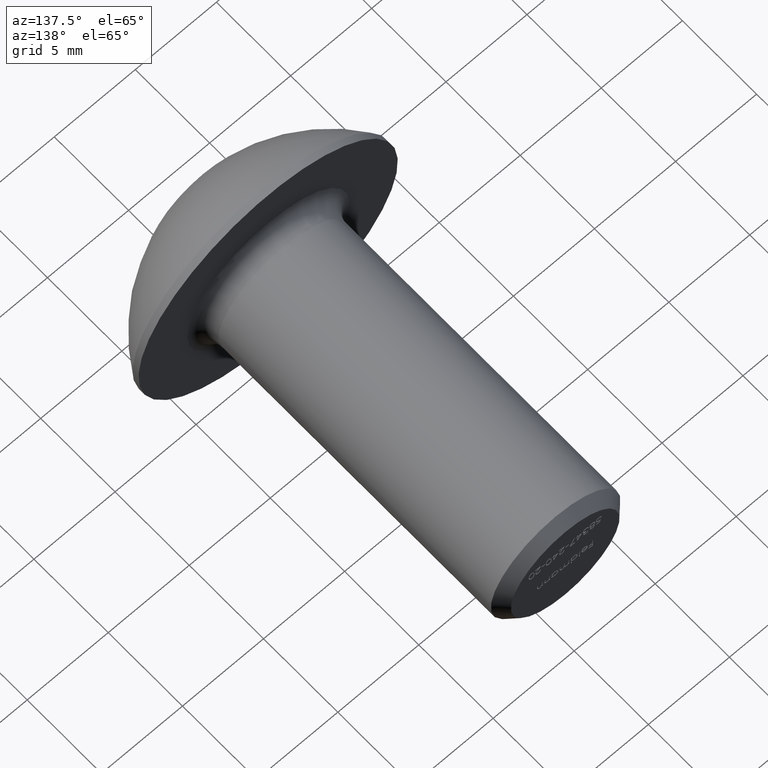
[diagram: clean part render]
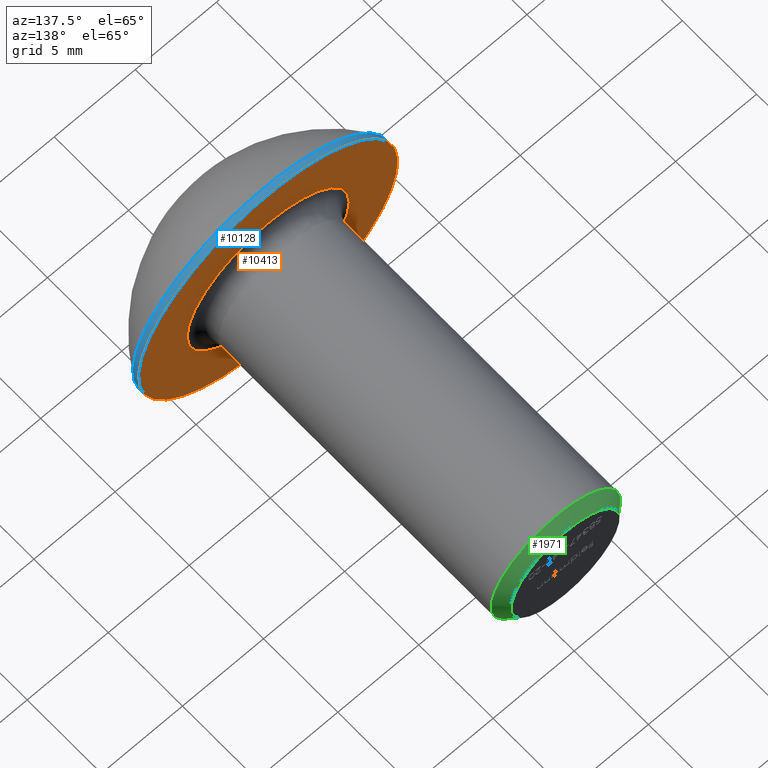
[diagram: same view with three faces highlighted in distinct colors, each labeled with its STEP entity id]
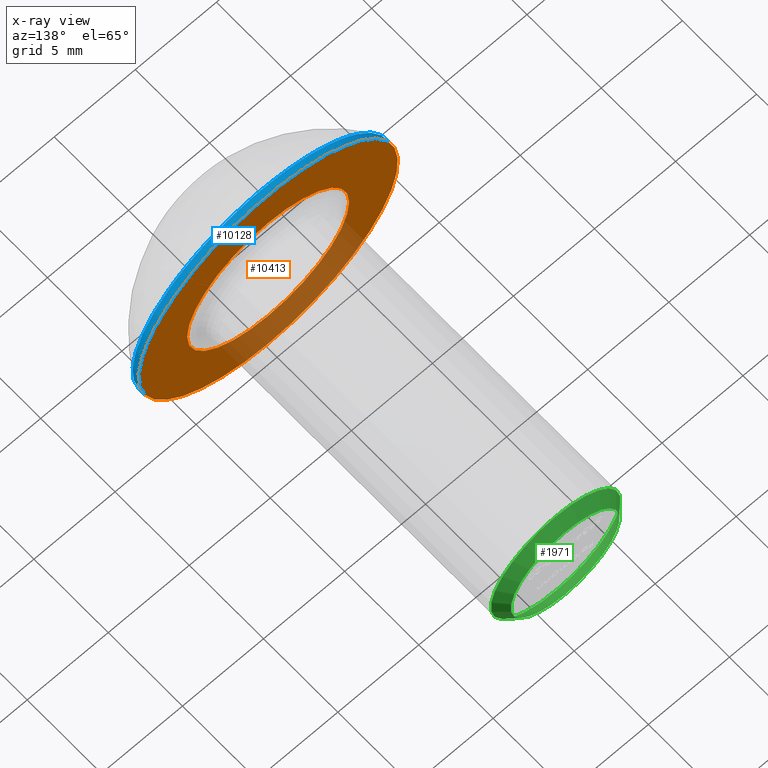
[diagram: x-ray of the same camera — body ghosted, the three highlighted faces saturated]
A machine part, auxiliary view with three faces highlighted in distinct colors.
The next image is the same camera in x-ray (body ghosted, the three faces saturated) — at least one of them is partly hidden behind the body in this view.
Their STEP definitions:

[orange] entity #10413 — the highlighted planar face has unit normal (0, -1, -0).
#270 = VERTEX_POINT ( 'NONE', #687 ) ;
#517 = AXIS2_PLACEMENT_3D ( 'NONE', #10687, #5062, #6247 ) ;
#687 = CARTESIAN_POINT ( 'NONE',  ( 0.000000000000000000, 4.400000000000000355, -8.000000000000000000 ) ) ;
#952 = ORIENTED_EDGE ( 'NONE', *, *, #3295, .T. ) ;
#1307 = EDGE_LOOP ( 'NONE', ( #5270 ) ) ;
#1503 = EDGE_CURVE ( 'NONE', #270, #270, #9214, .T. ) ;
#2052 = EDGE_LOOP ( 'NONE', ( #952 ) ) ;
#2203 = CARTESIAN_POINT ( 'NONE',  ( 0.000000000000000000, 4.400000000000000355, 0.000000000000000000 ) ) ;
#3031 = AXIS2_PLACEMENT_3D ( 'NONE', #2203, #10335, #9180 ) ;
#3295 = EDGE_CURVE ( 'NONE', #10657, #10657, #11158, .T. ) ;
#3474 = DIRECTION ( 'NONE',  ( -0.000000000000000000, -1.000000000000000000, -0.000000000000000000 ) ) ;
#5040 = FACE_OUTER_BOUND ( 'NONE', #1307, .T. ) ;
#5062 = DIRECTION ( 'NONE',  ( 0.000000000000000000, -1.000000000000000000, -0.000000000000000000 ) ) ;
#5270 = ORIENTED_EDGE ( 'NONE', *, *, #1503, .F. ) ;
#5323 = CARTESIAN_POINT ( 'NONE',  ( 0.000000000000000000, 4.400000000000000355, -4.999999999999996447 ) ) ;
#5950 = FACE_BOUND ( 'NONE', #2052, .T. ) ;
#6247 = DIRECTION ( 'NONE',  ( 0.000000000000000000, 0.000000000000000000, -1.000000000000000000 ) ) ;
#6956 = DIRECTION ( 'NONE',  ( 0.000000000000000000, 0.000000000000000000, -1.000000000000000000 ) ) ;
#9180 = DIRECTION ( 'NONE',  ( 0.000000000000000000, 0.000000000000000000, -1.000000000000000000 ) ) ;
#9214 = CIRCLE ( 'NONE', #3031, 8.000000000000000000 ) ;
#9591 = PLANE ( 'NONE',  #517 ) ;
#10335 = DIRECTION ( 'NONE',  ( -0.000000000000000000, -1.000000000000000000, -0.000000000000000000 ) ) ;
#10413 = ADVANCED_FACE ( 'NONE', ( #5950, #5040 ), #9591, .F. ) ;
#10657 = VERTEX_POINT ( 'NONE', #5323 ) ;
#10687 = CARTESIAN_POINT ( 'NONE',  ( 3.999999999999999112, 4.400000000000000355, 0.000000000000000000 ) ) ;
#11158 = CIRCLE ( 'NONE', #11311, 4.999999999999996447 ) ;
#11311 = AXIS2_PLACEMENT_3D ( 'NONE', #11603, #3474, #6956 ) ;
#11603 = CARTESIAN_POINT ( 'NONE',  ( 0.000000000000000000, 4.400000000000000355, 0.000000000000000000 ) ) ;

[blue] entity #10128 — the highlighted cylindrical surface (bore or boss wall) has radius 8 mm, axis along (-0, -1, -0).
#270 = VERTEX_POINT ( 'NONE', #687 ) ;
#687 = CARTESIAN_POINT ( 'NONE',  ( 0.000000000000000000, 4.400000000000000355, -8.000000000000000000 ) ) ;
#757 = CIRCLE ( 'NONE', #7056, 8.000000000000000000 ) ;
#1503 = EDGE_CURVE ( 'NONE', #270, #270, #9214, .T. ) ;
#1575 = FACE_OUTER_BOUND ( 'NONE', #2125, .T. ) ;
#1980 = DIRECTION ( 'NONE',  ( 0.000000000000000000, 0.000000000000000000, -1.000000000000000000 ) ) ;
#2125 = EDGE_LOOP ( 'NONE', ( #14991 ) ) ;
#2203 = CARTESIAN_POINT ( 'NONE',  ( 0.000000000000000000, 4.400000000000000355, 0.000000000000000000 ) ) ;
#2717 = CARTESIAN_POINT ( 'NONE',  ( 0.000000000000000000, 4.000000000000000000, 0.000000000000000000 ) ) ;
#3031 = AXIS2_PLACEMENT_3D ( 'NONE', #2203, #10335, #9180 ) ;
#3639 = AXIS2_PLACEMENT_3D ( 'NONE', #4525, #15000, #1980 ) ;
#3840 = DIRECTION ( 'NONE',  ( 0.000000000000000000, 0.000000000000000000, -1.000000000000000000 ) ) ;
#4525 = CARTESIAN_POINT ( 'NONE',  ( 0.000000000000000000, 0.000000000000000000, 0.000000000000000000 ) ) ;
#5060 = ORIENTED_EDGE ( 'NONE', *, *, #1503, .T. ) ;
#5075 = EDGE_LOOP ( 'NONE', ( #5060 ) ) ;
#5511 = EDGE_CURVE ( 'NONE', #6864, #6864, #757, .T. ) ;
#6864 = VERTEX_POINT ( 'NONE', #11218 ) ;
#7056 = AXIS2_PLACEMENT_3D ( 'NONE', #2717, #13241, #3840 ) ;
#9180 = DIRECTION ( 'NONE',  ( 0.000000000000000000, 0.000000000000000000, -1.000000000000000000 ) ) ;
#9214 = CIRCLE ( 'NONE', #3031, 8.000000000000000000 ) ;
#10128 = ADVANCED_FACE ( 'NONE', ( #1575, #12488 ), #13956, .T. ) ;
#10335 = DIRECTION ( 'NONE',  ( -0.000000000000000000, -1.000000000000000000, -0.000000000000000000 ) ) ;
#11218 = CARTESIAN_POINT ( 'NONE',  ( 0.000000000000000000, 4.000000000000000000, -8.000000000000000000 ) ) ;
#12488 = FACE_OUTER_BOUND ( 'NONE', #5075, .T. ) ;
#13241 = DIRECTION ( 'NONE',  ( -0.000000000000000000, -1.000000000000000000, -0.000000000000000000 ) ) ;
#13956 = CYLINDRICAL_SURFACE ( 'NONE', #3639, 8.000000000000000000 ) ;
#14991 = ORIENTED_EDGE ( 'NONE', *, *, #5511, .F. ) ;
#15000 = DIRECTION ( 'NONE',  ( -0.000000000000000000, -1.000000000000000000, -0.000000000000000000 ) ) ;

[green] entity #1971 — the highlighted conical surface has half-angle 45 deg.
#10 = DIRECTION ( 'NONE',  ( 0.000000000000000000, 0.000000000000000000, -1.000000000000000000 ) ) ;
#1469 = AXIS2_PLACEMENT_3D ( 'NONE', #5709, #9218, #3407 ) ;
#1971 = ADVANCED_FACE ( 'NONE', ( #2270, #11897 ), #14280, .T. ) ;
#2270 = FACE_OUTER_BOUND ( 'NONE', #6554, .T. ) ;
#2415 = CARTESIAN_POINT ( 'NONE',  ( 0.000000000000000000, 24.40000000000000213, 0.000000000000000000 ) ) ;
#3008 = DIRECTION ( 'NONE',  ( 0.000000000000000000, 0.000000000000000000, -1.000000000000000000 ) ) ;
#3407 = DIRECTION ( 'NONE',  ( 0.000000000000000000, 0.000000000000000000, -1.000000000000000000 ) ) ;
#4105 = CARTESIAN_POINT ( 'NONE',  ( 0.000000000000000000, 23.75339999999999918, -3.999999999999994227 ) ) ;
#4205 = CARTESIAN_POINT ( 'NONE',  ( 0.000000000000000000, 24.40000000000000213, -3.353400000000000158 ) ) ;
#5102 = AXIS2_PLACEMENT_3D ( 'NONE', #2415, #12018, #10 ) ;
#5502 = EDGE_LOOP ( 'NONE', ( #11880 ) ) ;
#5575 = DIRECTION ( 'NONE',  ( -0.000000000000000000, -1.000000000000000000, -0.000000000000000000 ) ) ;
#5709 = CARTESIAN_POINT ( 'NONE',  ( 0.000000000000000000, 24.40000000000000213, 0.000000000000000000 ) ) ;
#6120 = VERTEX_POINT ( 'NONE', #4105 ) ;
#6554 = EDGE_LOOP ( 'NONE', ( #14150 ) ) ;
#6710 = EDGE_CURVE ( 'NONE', #14671, #14671, #7184, .T. ) ;
#7184 = CIRCLE ( 'NONE', #5102, 3.353400000000000158 ) ;
#9218 = DIRECTION ( 'NONE',  ( -0.000000000000000000, -1.000000000000000000, -0.000000000000000000 ) ) ;
#10938 = EDGE_CURVE ( 'NONE', #6120, #6120, #13765, .T. ) ;
#11444 = AXIS2_PLACEMENT_3D ( 'NONE', #14668, #5575, #3008 ) ;
#11880 = ORIENTED_EDGE ( 'NONE', *, *, #6710, .T. ) ;
#11897 = FACE_BOUND ( 'NONE', #5502, .T. ) ;
#12018 = DIRECTION ( 'NONE',  ( -0.000000000000000000, -1.000000000000000000, -0.000000000000000000 ) ) ;
#13765 = CIRCLE ( 'NONE', #11444, 3.999999999999994227 ) ;
#14150 = ORIENTED_EDGE ( 'NONE', *, *, #10938, .F. ) ;
#14280 = CONICAL_SURFACE ( 'NONE', #1469, 3.353400000000000158, 0.7853981633974428389 ) ;
#14668 = CARTESIAN_POINT ( 'NONE',  ( 0.000000000000000000, 23.75339999999999918, 0.000000000000000000 ) ) ;
#14671 = VERTEX_POINT ( 'NONE', #4205 ) ;